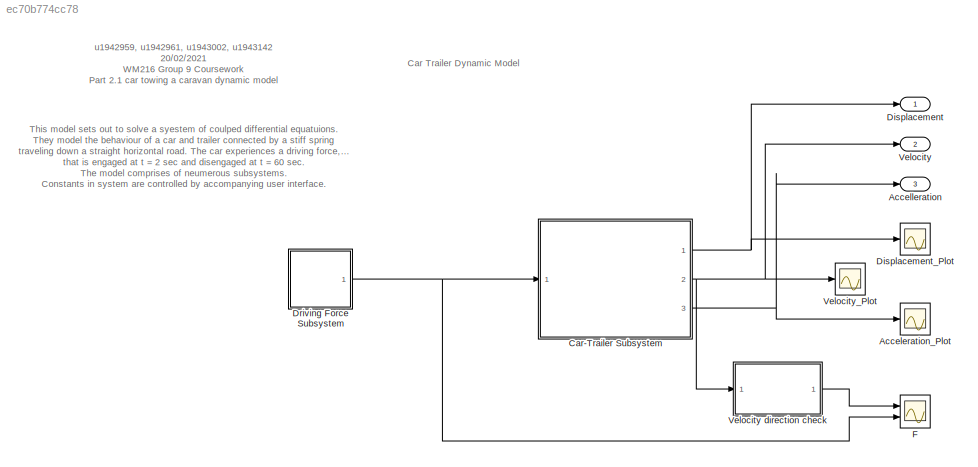
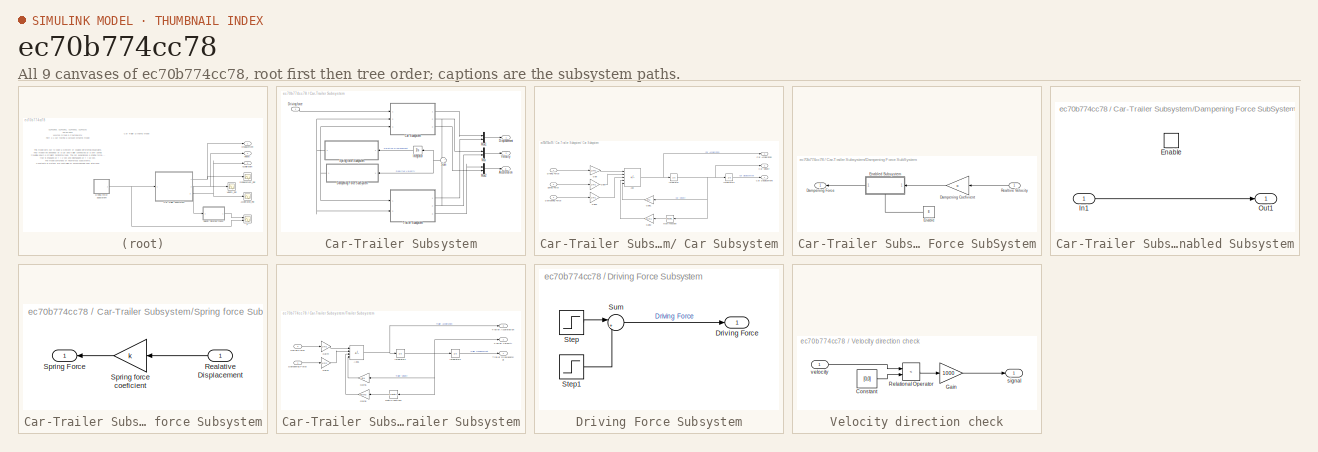
[diagram: thumbnail index - all 9 canvases of the model, root first then tree order]
MODEL slx_ec70b774cc78
KIND model
CONFIG AbsTol = auto
CONFIG EnableMultiTasking = off
CONFIG FixedStep = auto
CONFIG InitFcn = SimFramework('model_parameters.json');
CONFIG MaxStep = .01
CONFIG MinStep = auto
CONFIG RelTol = 1e-3
CONFIG SampleTimeConstraint = Unconstrained
CONFIG SolverName = VariableStepAuto
CONFIG StartTime = 0.0
CONFIG StopTime = 475
WORKSPACE source: mxarray member
WORKSPACE E = 0
WORKSPACE F = 5000
WORKSPACE MaxStep = 0.01
WORKSPACE StopTime = 475
WORKSPACE a1 = 5
WORKSPACE a2 = 2.5
WORKSPACE c = 0
WORKSPACE g = 9.8
WORKSPACE k = 12150
WORKSPACE m1 = 1400
WORKSPACE m2 = 600
WORKSPACE name = 'carTrailerModelDampened'
WORKSPACE u = 0.002
BLOCK [Scope] Acceleration_Plot
  Floating = off
  NumInputPorts = 1
  Ports = [1]
  ScopeSpecificationString = Simulink.scopes.TimeScopeBlockCfg('CurrentConfiguration', extmgr.ConfigurationSet(extmgr.Configuration('Core','General UI',true),extmgr.Configuration('Core','Source UI',true),extmgr.Configuration('Sources','WiredSimulink',true,'DataLoggingVariableName','ScopeData2'),extmgr.Configuration('Visuals','Time Domain',true,'SerializedDisplays',{struct('MinYLimReal','-4.49495','MaxYLimReal','4.7413','YLabe...<+1436ch>
BLOCK [Outport] Accelleration
  Port = 3
  SignalName = Acelleration
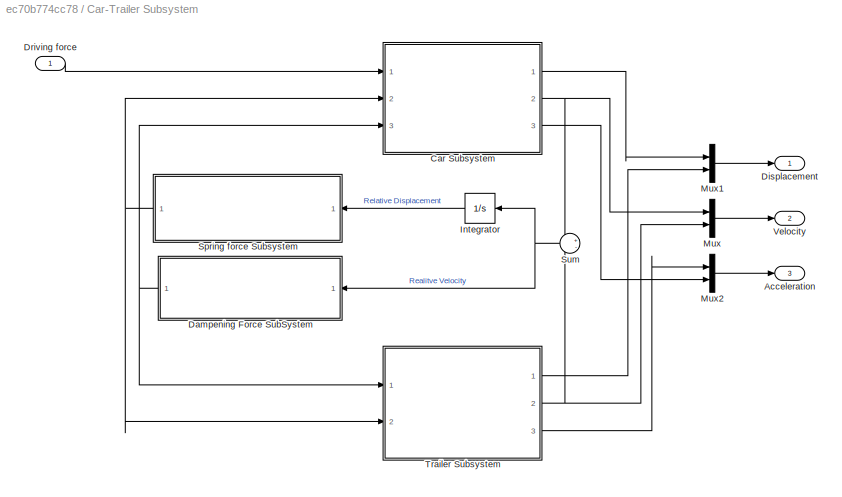
BLOCK [SubSystem] Car-Trailer Subsystem
  Ports = [1, 3]
  RequestExecContextInheritance = off
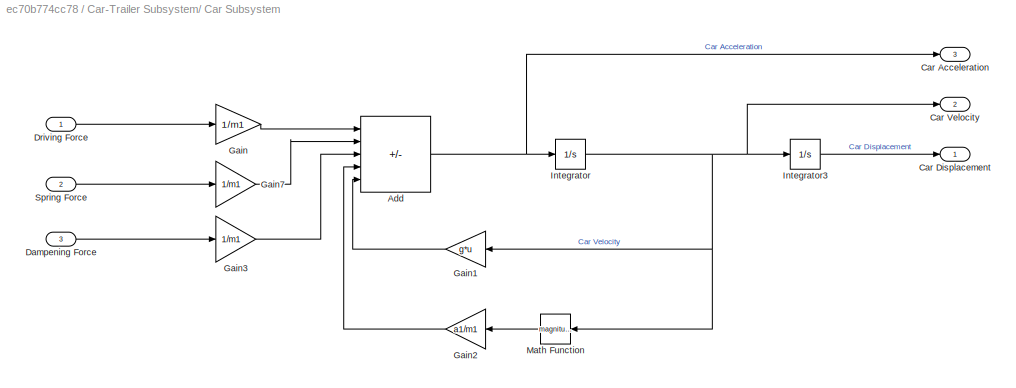
BLOCK [SubSystem] Car-Trailer Subsystem/ Car Subsystem
  Ports = [3, 3]
  RequestExecContextInheritance = off
BLOCK [Sum] Car-Trailer Subsystem/ Car Subsystem/Add
  IconShape = rectangular
  Inputs = +----
  Ports = [5, 1]
BLOCK [Outport] Car-Trailer Subsystem/ Car Subsystem/Car Acceleration
  Port = 3
  VectorParamsAs1DForOutWhenUnconnected = off
BLOCK [Outport] Car-Trailer Subsystem/ Car Subsystem/Car Displacement
  VectorParamsAs1DForOutWhenUnconnected = off
BLOCK [Outport] Car-Trailer Subsystem/ Car Subsystem/Car Velocity
  Port = 2
  VectorParamsAs1DForOutWhenUnconnected = off
BLOCK [Inport] Car-Trailer Subsystem/ Car Subsystem/Dampening Force
  Port = 3
BLOCK [Inport] Car-Trailer Subsystem/ Car Subsystem/Driving Force
BLOCK [Gain] Car-Trailer Subsystem/ Car Subsystem/Gain
  Gain = 1/m1
BLOCK [Gain] Car-Trailer Subsystem/ Car Subsystem/Gain1
  Gain = g*u
  NameLocation = top
BLOCK [Gain] Car-Trailer Subsystem/ Car Subsystem/Gain2
  Gain = a1/m1
  NameLocation = top
BLOCK [Gain] Car-Trailer Subsystem/ Car Subsystem/Gain3
  Gain = 1/m1
BLOCK [Gain] Car-Trailer Subsystem/ Car Subsystem/Gain7
  Gain = 1/m1
BLOCK [Integrator] Car-Trailer Subsystem/ Car Subsystem/Integrator
  Ports = [1, 1]
BLOCK [Integrator] Car-Trailer Subsystem/ Car Subsystem/Integrator3
  Ports = [1, 1]
BLOCK [Math] Car-Trailer Subsystem/ Car Subsystem/Math Function
  NameLocation = top
  Operator = magnitude^2
  Ports = [1, 1]
  SignedPower = on
BLOCK [Inport] Car-Trailer Subsystem/ Car Subsystem/Spring Force
  Port = 2
BLOCK [Outport] Car-Trailer Subsystem/Acceleration
  Port = 3
  VectorParamsAs1DForOutWhenUnconnected = off
BLOCK [SubSystem] Car-Trailer Subsystem/Dampening Force SubSystem
  Ports = [1, 1]
  RequestExecContextInheritance = off
BLOCK [Gain] Car-Trailer Subsystem/Dampening Force SubSystem/Dampening Coefivient
  Gain = c
  NameLocation = top
BLOCK [Outport] Car-Trailer Subsystem/Dampening Force SubSystem/Dampening Force
  VectorParamsAs1DForOutWhenUnconnected = off
BLOCK [Constant] Car-Trailer Subsystem/Dampening Force SubSystem/Enable 
  NameLocation = top
  Value = E
BLOCK [SubSystem] Car-Trailer Subsystem/Dampening Force SubSystem/Enabled Subsystem
  NameLocation = top
  Ports = [1, 1, 1]
  RequestExecContextInheritance = off
  TreatAsAtomicUnit = on
BLOCK [EnablePort] Car-Trailer Subsystem/Dampening Force SubSystem/Enabled Subsystem/Enable
  Ports = []
BLOCK [Inport] Car-Trailer Subsystem/Dampening Force SubSystem/Enabled Subsystem/In1
BLOCK [Outport] Car-Trailer Subsystem/Dampening Force SubSystem/Enabled Subsystem/Out1
  VectorParamsAs1DForOutWhenUnconnected = off
BLOCK [Inport] Car-Trailer Subsystem/Dampening Force SubSystem/Realtive Velocity
  NameLocation = top
BLOCK [Outport] Car-Trailer Subsystem/Displacement
  VectorParamsAs1DForOutWhenUnconnected = off
BLOCK [Inport] Car-Trailer Subsystem/Driving force
BLOCK [Integrator] Car-Trailer Subsystem/Integrator
  NameLocation = top
  Ports = [1, 1]
BLOCK [Mux] Car-Trailer Subsystem/Mux
  DisplayOption = bar
  Inputs = 2
  Ports = [2, 1]
BLOCK [Mux] Car-Trailer Subsystem/Mux1
  DisplayOption = bar
  Inputs = 2
  Ports = [2, 1]
BLOCK [Mux] Car-Trailer Subsystem/Mux2
  DisplayOption = bar
  Inputs = 2
  Ports = [2, 1]
BLOCK [SubSystem] Car-Trailer Subsystem/Spring force Subsystem
  NameLocation = top
  Ports = [1, 1]
  RequestExecContextInheritance = off
BLOCK [Inport] Car-Trailer Subsystem/Spring force Subsystem/Realative Displacement
BLOCK [Outport] Car-Trailer Subsystem/Spring force Subsystem/Spring Force
  NameLocation = top
  VectorParamsAs1DForOutWhenUnconnected = off
BLOCK [Gain] Car-Trailer Subsystem/Spring force Subsystem/Spring force coeficient
  Gain = k
  NameLocation = top
BLOCK [Sum] Car-Trailer Subsystem/Sum
  Inputs = +-
  NameLocation = top
  Ports = [2, 1]
BLOCK [SubSystem] Car-Trailer Subsystem/Trailer Subsystem
  Ports = [2, 3]
  RequestExecContextInheritance = off
BLOCK [Sum] Car-Trailer Subsystem/Trailer Subsystem/Add1
  IconShape = rectangular
  Inputs = ++--
  Ports = [4, 1]
BLOCK [Inport] Car-Trailer Subsystem/Trailer Subsystem/Dampening Force
BLOCK [Gain] Car-Trailer Subsystem/Trailer Subsystem/Gain1
  Gain = 1/m2
BLOCK [Gain] Car-Trailer Subsystem/Trailer Subsystem/Gain4
  Gain = 1/m2
BLOCK [Gain] Car-Trailer Subsystem/Trailer Subsystem/Gain5
  Gain = a2/m2
  NameLocation = top
BLOCK [Gain] Car-Trailer Subsystem/Trailer Subsystem/Gain6
  Gain = g*u
  NameLocation = top
BLOCK [Integrator] Car-Trailer Subsystem/Trailer Subsystem/Integrator1
  Ports = [1, 1]
BLOCK [Integrator] Car-Trailer Subsystem/Trailer Subsystem/Integrator2
  Ports = [1, 1]
BLOCK [Math] Car-Trailer Subsystem/Trailer Subsystem/Math Function1
  NameLocation = top
  Operator = magnitude^2
  Ports = [1, 1]
  SignedPower = on
BLOCK [Inport] Car-Trailer Subsystem/Trailer Subsystem/Spring Force
  Port = 2
BLOCK [Outport] Car-Trailer Subsystem/Trailer Subsystem/Trailer Acceleration
  Port = 3
  VectorParamsAs1DForOutWhenUnconnected = off
BLOCK [Outport] Car-Trailer Subsystem/Trailer Subsystem/Trailer Displacemnet
  VectorParamsAs1DForOutWhenUnconnected = off
BLOCK [Outport] Car-Trailer Subsystem/Trailer Subsystem/Trailer Velocity
  Port = 2
  VectorParamsAs1DForOutWhenUnconnected = off
BLOCK [Outport] Car-Trailer Subsystem/Velocity
  Port = 2
  VectorParamsAs1DForOutWhenUnconnected = off
BLOCK [Outport] Displacement
  SignalName = Displacement
BLOCK [Scope] Displacement_Plot
  Floating = off
  NumInputPorts = 1
  Ports = [1]
  ScopeSpecificationString = Simulink.scopes.TimeScopeBlockCfg('CurrentConfiguration', extmgr.ConfigurationSet(extmgr.Configuration('Core','General UI',true),extmgr.Configuration('Core','Source UI',true),extmgr.Configuration('Sources','WiredSimulink',true),extmgr.Configuration('Visuals','Time Domain',true,'SerializedDisplays',{struct('MinYLimReal','847.12023','MaxYLimReal','1829.29344','YLabelReal','','MinYLimMag','847.12023'...<+1438ch>
BLOCK [SubSystem] Driving Force Subsystem
  Ports = [0, 1]
  RequestExecContextInheritance = off
BLOCK [Outport] Driving Force Subsystem/Driving Force
  VectorParamsAs1DForOutWhenUnconnected = off
BLOCK [Step] Driving Force Subsystem/Step
  After = F
  SampleTime = 0
  Time = 2
BLOCK [Step] Driving Force Subsystem/Step1
  After = F
  SampleTime = 0
  Time = 60
BLOCK [Sum] Driving Force Subsystem/Sum
  Inputs = |+-
  Ports = [2, 1]
BLOCK [Scope] F
  Floating = off
  NumInputPorts = 2
  Ports = [2]
  ScopeSpecificationString = Simulink.scopes.TimeScopeBlockCfg('CurrentConfiguration', extmgr.ConfigurationSet(extmgr.Configuration('Core','General UI',true),extmgr.Configuration('Core','Source UI',true),extmgr.Configuration('Sources','WiredSimulink',true,'DataLoggingVariableName','ScopeData3'),extmgr.Configuration('Visuals','Time Domain',true,'SerializedDisplays',{struct('MinYLimReal','-625.00000','MaxYLimReal','3985.07584',...<+1495ch>
BLOCK [Outport] Velocity
  Port = 2
  SignalName = Velocity
BLOCK [SubSystem] Velocity direction check
  Ports = [1, 1]
  RequestExecContextInheritance = off
BLOCK [Constant] Velocity direction check/Constant
  Value = [0,0]
BLOCK [Gain] Velocity direction check/Gain
  Gain = 1000
BLOCK [RelationalOperator] Velocity direction check/Relational Operator
  InputSameDT = off
  Operator = <
  OutDataTypeStr = boolean
  Ports = [2, 1]
  RndMeth = Simplest
BLOCK [Outport] Velocity direction check/signal
  VectorParamsAs1DForOutWhenUnconnected = off
BLOCK [Inport] Velocity direction check/velocity
BLOCK [Scope] Velocity_Plot
  Floating = off
  NumInputPorts = 1
  Ports = [1]
  ScopeSpecificationString = Simulink.scopes.TimeScopeBlockCfg('CurrentConfiguration', extmgr.ConfigurationSet(extmgr.Configuration('Core','General UI',true),extmgr.Configuration('Core','Source UI',true),extmgr.Configuration('Sources','WiredSimulink',true,'DataLoggingVariableName','ScopeData1'),extmgr.Configuration('Visuals','Time Domain',true,'SerializedDisplays',{struct('MinYLimReal','0.46716','MaxYLimReal','3.93485','YLabe...<+1579ch>
ANNOTATION (root): u1942959, u1942961, u1943002, u1943142 20/02/2021 WM216 Group 9 Coursework Part 2.1 car towing a caravan dynamic model
ANNOTATION (root): Car Trailer Dynamic Model
ANNOTATION (root): This model sets out to solve a syestem of coulped differential equatuions. They model the behaviour of a car and trailer connected by a stiff spring traveling down a straight horizontal road. The car experiences a driving force, F that is engaged at t = 2 sec and disengaged at t = 60 sec. The model comprises of neumerous subsystems. Constants in system are controlled by accompanying user interface...<+1ch>
NET Car-Trailer Subsystem/ Car Subsystem/Add:1 -> Car-Trailer Subsystem/ Car Subsystem/Car Acceleration:1, Car-Trailer Subsystem/ Car Subsystem/Integrator:1
LINE Car-Trailer Subsystem/ Car Subsystem/Dampening Force:1 -> Car-Trailer Subsystem/ Car Subsystem/Gain3:1
LINE Car-Trailer Subsystem/ Car Subsystem/Driving Force:1 -> Car-Trailer Subsystem/ Car Subsystem/Gain:1
LINE Car-Trailer Subsystem/ Car Subsystem/Gain1:1 -> Car-Trailer Subsystem/ Car Subsystem/Add:5
LINE Car-Trailer Subsystem/ Car Subsystem/Gain2:1 -> Car-Trailer Subsystem/ Car Subsystem/Add:4
LINE Car-Trailer Subsystem/ Car Subsystem/Gain3:1 -> Car-Trailer Subsystem/ Car Subsystem/Add:3
LINE Car-Trailer Subsystem/ Car Subsystem/Gain7:1 -> Car-Trailer Subsystem/ Car Subsystem/Add:2
LINE Car-Trailer Subsystem/ Car Subsystem/Gain:1 -> Car-Trailer Subsystem/ Car Subsystem/Add:1
LINE Car-Trailer Subsystem/ Car Subsystem/Integrator3:1 -> Car-Trailer Subsystem/ Car Subsystem/Car Displacement:1
NET Car-Trailer Subsystem/ Car Subsystem/Integrator:1 -> Car-Trailer Subsystem/ Car Subsystem/Car Velocity:1, Car-Trailer Subsystem/ Car Subsystem/Gain1:1, Car-Trailer Subsystem/ Car Subsystem/Integrator3:1, Car-Trailer Subsystem/ Car Subsystem/Math Function:1
LINE Car-Trailer Subsystem/ Car Subsystem/Math Function:1 -> Car-Trailer Subsystem/ Car Subsystem/Gain2:1
LINE Car-Trailer Subsystem/ Car Subsystem/Spring Force:1 -> Car-Trailer Subsystem/ Car Subsystem/Gain7:1
LINE Car-Trailer Subsystem/ Car Subsystem:1 -> Car-Trailer Subsystem/Mux1:1
NET Car-Trailer Subsystem/ Car Subsystem:2 -> Car-Trailer Subsystem/Mux:1, Car-Trailer Subsystem/Sum:1
LINE Car-Trailer Subsystem/ Car Subsystem:3 -> Car-Trailer Subsystem/Mux2:2
LINE Car-Trailer Subsystem/Dampening Force SubSystem/Dampening Coefivient:1 -> Car-Trailer Subsystem/Dampening Force SubSystem/Enabled Subsystem:1
LINE Car-Trailer Subsystem/Dampening Force SubSystem/Enable :1 -> Car-Trailer Subsystem/Dampening Force SubSystem/Enabled Subsystem:enable
LINE Car-Trailer Subsystem/Dampening Force SubSystem/Enabled Subsystem/In1:1 -> Car-Trailer Subsystem/Dampening Force SubSystem/Enabled Subsystem/Out1:1
LINE Car-Trailer Subsystem/Dampening Force SubSystem/Enabled Subsystem:1 -> Car-Trailer Subsystem/Dampening Force SubSystem/Dampening Force:1
LINE Car-Trailer Subsystem/Dampening Force SubSystem/Realtive Velocity:1 -> Car-Trailer Subsystem/Dampening Force SubSystem/Dampening Coefivient:1
NET Car-Trailer Subsystem/Dampening Force SubSystem:1 -> Car-Trailer Subsystem/ Car Subsystem:3, Car-Trailer Subsystem/Trailer Subsystem:1
LINE Car-Trailer Subsystem/Driving force:1 -> Car-Trailer Subsystem/ Car Subsystem:1
LINE Car-Trailer Subsystem/Integrator:1 -> Car-Trailer Subsystem/Spring force Subsystem:1
LINE Car-Trailer Subsystem/Mux1:1 -> Car-Trailer Subsystem/Displacement:1
LINE Car-Trailer Subsystem/Mux2:1 -> Car-Trailer Subsystem/Acceleration:1
LINE Car-Trailer Subsystem/Mux:1 -> Car-Trailer Subsystem/Velocity:1
LINE Car-Trailer Subsystem/Spring force Subsystem/Realative Displacement:1 -> Car-Trailer Subsystem/Spring force Subsystem/Spring force coeficient:1
LINE Car-Trailer Subsystem/Spring force Subsystem/Spring force coeficient:1 -> Car-Trailer Subsystem/Spring force Subsystem/Spring Force:1
NET Car-Trailer Subsystem/Spring force Subsystem:1 -> Car-Trailer Subsystem/ Car Subsystem:2, Car-Trailer Subsystem/Trailer Subsystem:2
NET Car-Trailer Subsystem/Sum:1 -> Car-Trailer Subsystem/Dampening Force SubSystem:1, Car-Trailer Subsystem/Integrator:1
NET Car-Trailer Subsystem/Trailer Subsystem/Add1:1 -> Car-Trailer Subsystem/Trailer Subsystem/Integrator1:1, Car-Trailer Subsystem/Trailer Subsystem/Trailer Acceleration:1
LINE Car-Trailer Subsystem/Trailer Subsystem/Dampening Force:1 -> Car-Trailer Subsystem/Trailer Subsystem/Gain1:1
LINE Car-Trailer Subsystem/Trailer Subsystem/Gain1:1 -> Car-Trailer Subsystem/Trailer Subsystem/Add1:2
LINE Car-Trailer Subsystem/Trailer Subsystem/Gain4:1 -> Car-Trailer Subsystem/Trailer Subsystem/Add1:1
LINE Car-Trailer Subsystem/Trailer Subsystem/Gain5:1 -> Car-Trailer Subsystem/Trailer Subsystem/Add1:3
LINE Car-Trailer Subsystem/Trailer Subsystem/Gain6:1 -> Car-Trailer Subsystem/Trailer Subsystem/Add1:4
NET Car-Trailer Subsystem/Trailer Subsystem/Integrator1:1 -> Car-Trailer Subsystem/Trailer Subsystem/Gain6:1, Car-Trailer Subsystem/Trailer Subsystem/Integrator2:1, Car-Trailer Subsystem/Trailer Subsystem/Math Function1:1, Car-Trailer Subsystem/Trailer Subsystem/Trailer Velocity:1
LINE Car-Trailer Subsystem/Trailer Subsystem/Integrator2:1 -> Car-Trailer Subsystem/Trailer Subsystem/Trailer Displacemnet:1
LINE Car-Trailer Subsystem/Trailer Subsystem/Math Function1:1 -> Car-Trailer Subsystem/Trailer Subsystem/Gain5:1
LINE Car-Trailer Subsystem/Trailer Subsystem/Spring Force:1 -> Car-Trailer Subsystem/Trailer Subsystem/Gain4:1
LINE Car-Trailer Subsystem/Trailer Subsystem:1 -> Car-Trailer Subsystem/Mux1:2
NET Car-Trailer Subsystem/Trailer Subsystem:2 -> Car-Trailer Subsystem/Mux:2, Car-Trailer Subsystem/Sum:2
LINE Car-Trailer Subsystem/Trailer Subsystem:3 -> Car-Trailer Subsystem/Mux2:1
NET Car-Trailer Subsystem:1 -> Displacement:1, Displacement_Plot:1
NET Car-Trailer Subsystem:2 -> Velocity direction check:1, Velocity:1, Velocity_Plot:1
NET Car-Trailer Subsystem:3 -> Acceleration_Plot:1, Accelleration:1
LINE Driving Force Subsystem/Step1:1 -> Driving Force Subsystem/Sum:2
LINE Driving Force Subsystem/Step:1 -> Driving Force Subsystem/Sum:1
LINE Driving Force Subsystem/Sum:1 -> Driving Force Subsystem/Driving Force:1
NET Driving Force Subsystem:1 -> Car-Trailer Subsystem:1, F:2
LINE Velocity direction check/Constant:1 -> Velocity direction check/Relational Operator:2
LINE Velocity direction check/Gain:1 -> Velocity direction check/signal:1
LINE Velocity direction check/Relational Operator:1 -> Velocity direction check/Gain:1
LINE Velocity direction check/velocity:1 -> Velocity direction check/Relational Operator:1
LINE Velocity direction check:1 -> F:1
note: NET lines group one-source signal fan-out (src -> all destinations, sorted); 1:1 wires keep LINE
